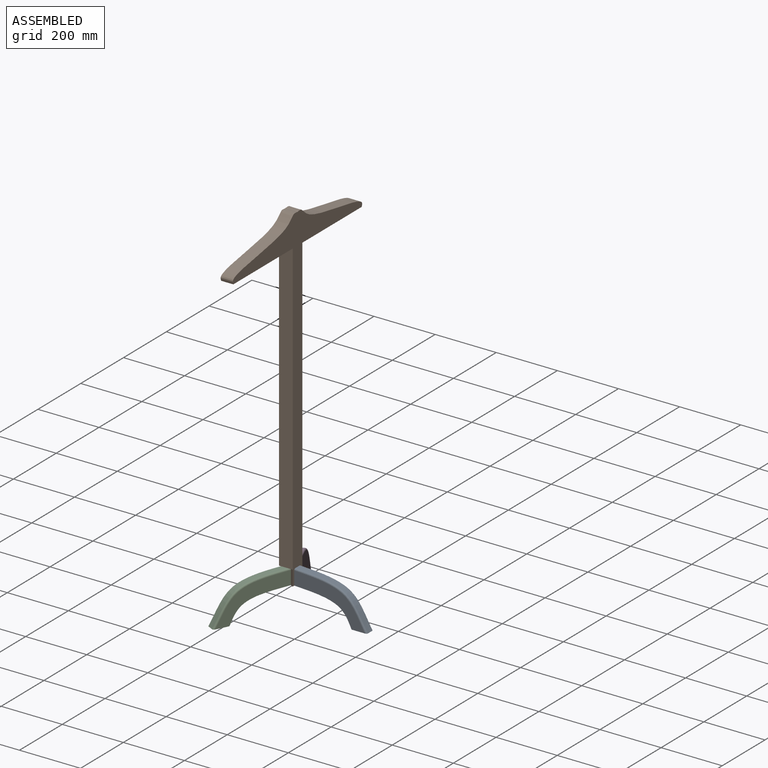
[diagram: assembled view]
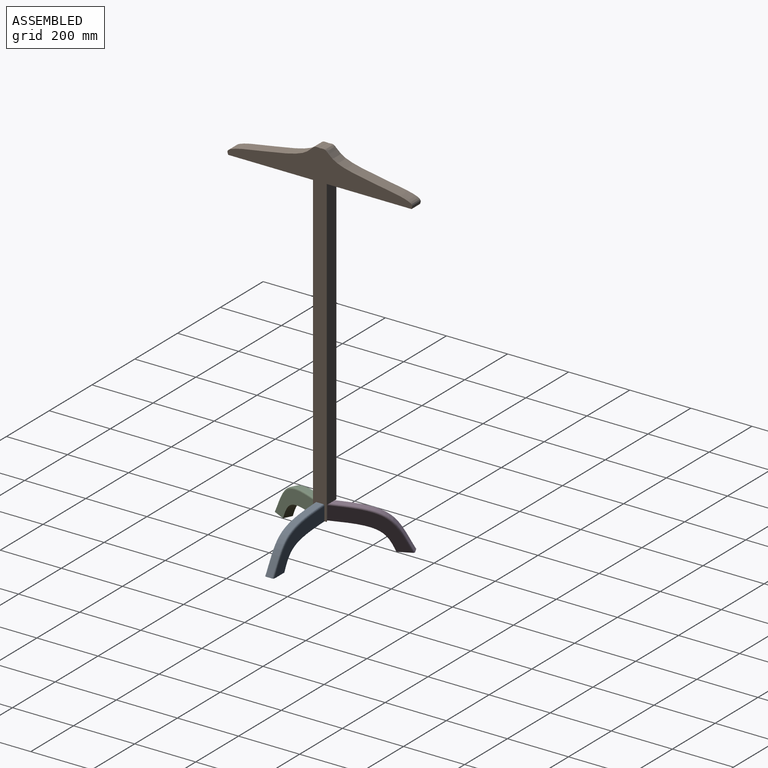
[diagram: assembled view, second angle]
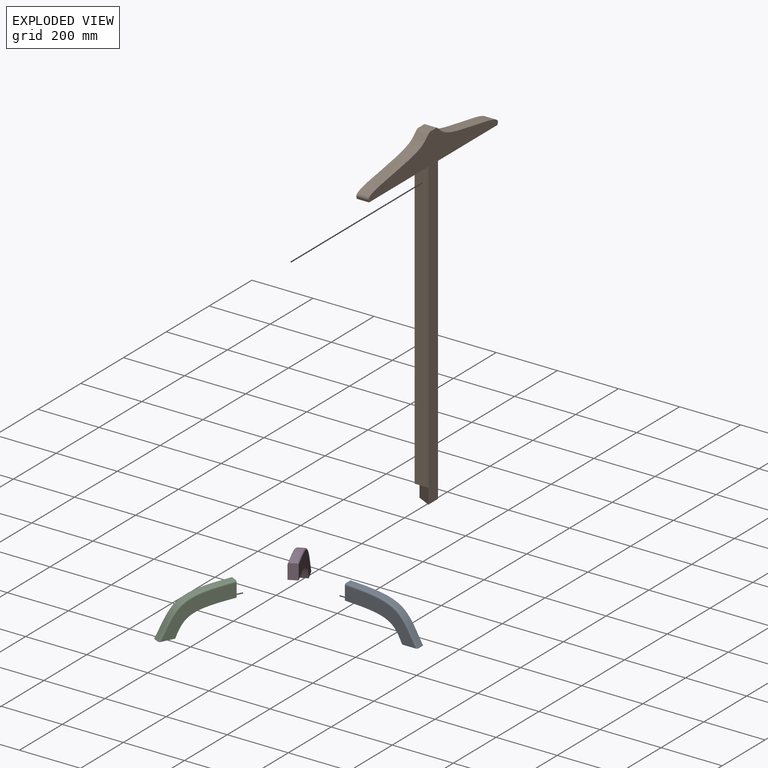
[diagram: exploded view]
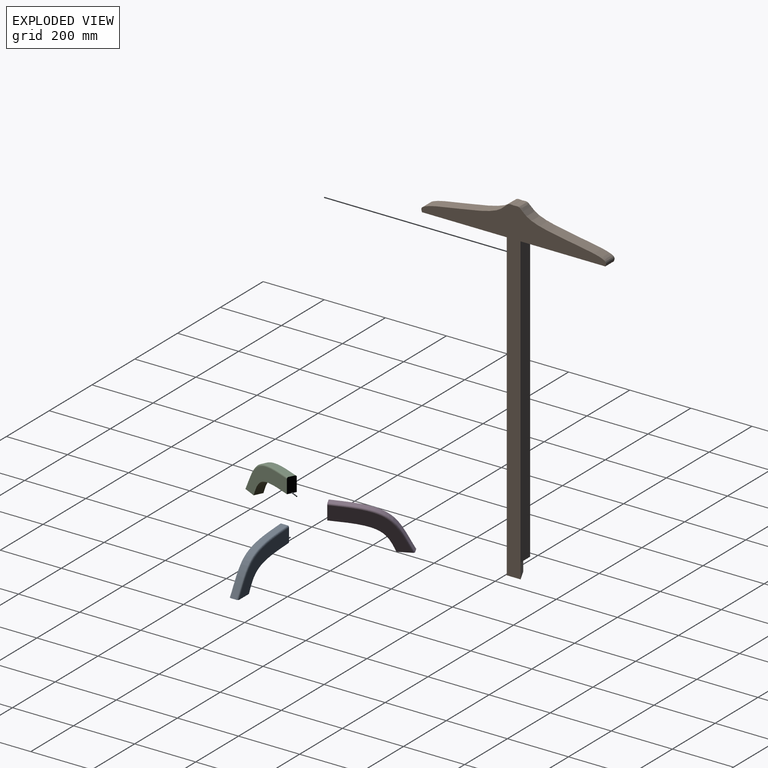
[diagram: exploded view, second angle]
ASSEMBLY  parts=4 mates=3
PART A: 8 faces, bbox 247.5x31.2x137.2 mm
  f0: plane 50.2x30.2mm, normal (-1,0,0), area 1489.3mm2, adj f1,f3,f4,f5,f6,f7
  f1: extruded ~187.38x80mm, area 6602.4mm2, adj f0,f2,f4,f5
  f2: plane 51.21x31.21mm, normal (0,0,-1), area 1487.4mm2, adj f1,f3,f4,f5,f6,f7
  f3: extruded ~237.38x130mm, area 5869.7mm2, adj f0,f2,f6,f7
  f4: plane 231.58x125.05mm, normal (0,-1,0), area 10548.1mm2, adj f0,f1,f2,f7
  f5: plane 231.55x125.02mm, normal (0,1,0), area 10548.4mm2, adj f0,f1,f2,f6
  f6: bspline ~240.76x133.55mm, area 2278.2mm2, adj f0,f2,f3,f5
  f7: bspline ~246.28x136.03mm, area 2278.2mm2, adj f0,f2,f3,f4
PART B: 15 faces, bbox 630.3x45x1105.2 mm
  f0: plane 45x45mm, normal (0,0,-1), area 1012.5mm2, adj f1,f6,f8
  f1: plane 1105.16x630.33mm, normal (0,-1,0), area 76077.8mm2, adj f0,f2,f4,f6,f8,f10,f11,f12
  f2: plane 950x45mm, normal (1,0,0), area 42750mm2, adj f1,f3,f5,f7,f10
  f3: plane 950x45mm, normal (0,1,0), area 42750mm2, adj f2,f4,f5,f7,f9
  f4: plane 950x45mm, normal (-1,0,0), area 42750mm2, adj f1,f3,f5,f9,f11
  f5: plane 45x5mm, normal (0,0,1), area 225mm2, adj f2,f3,f4,f14
  f6: plane 50x45mm, normal (0.89,0.45,0), area 2515.6mm2, adj f0,f1,f7,f8
  f7: plane 45x22.5mm, normal (0,0,-1), area 506.2mm2, adj f2,f3,f6
  f8: plane 50x45mm, normal (-0.89,0.45,0), area 2515.6mm2, adj f0,f1,f6,f9
  f9: plane 45x22.5mm, normal (0,0,-1), area 506.3mm2, adj f3,f4,f8
  f10: plane 277.5x40mm, normal (0,0,-1), area 11100mm2, adj f1,f2,f12,f14
  f11: plane 277.5x40mm, normal (0,0,-1), area 11100mm2, adj f1,f4,f13,f14
  f12: extruded ~302.19x100.86mm, area 13311.8mm2, adj f1,f10,f13,f14
  f13: extruded ~302.19x100.86mm, area 13311.8mm2, adj f1,f11,f12,f14
  f14: plane 630.33x105.16mm, normal (0,1,0), area 31077.8mm2, adj f5,f10,f11,f12,f13
PART C: same geometry as A
PART D: same geometry as A
PLACE A t=(40.31,-83.89,20.13)mm
PLACE B rot(axis=(0,0,1),90deg) t=(-93.84,-83.89,100.13)mm
PLACE C rot(axis=(0,0,-1),116.6deg) t=(-143.77,-195.01,20.13)mm
PLACE D rot(axis=(0,0,1),116.6deg) t=(-143.77,27.22,20.13)mm
MATE fastened B.f1 <-> A.f0  axis (1,0,0) through (-71.34,-83.89,100.13)mm
MATE fastened C.f0 <-> B.f8  axis (0.45,0.89,0) through (-93.84,-95.14,100.13)mm
MATE fastened D.f0 <-> B.f6  axis (0.45,-0.89,0) through (-93.84,-72.64,100.13)mm
